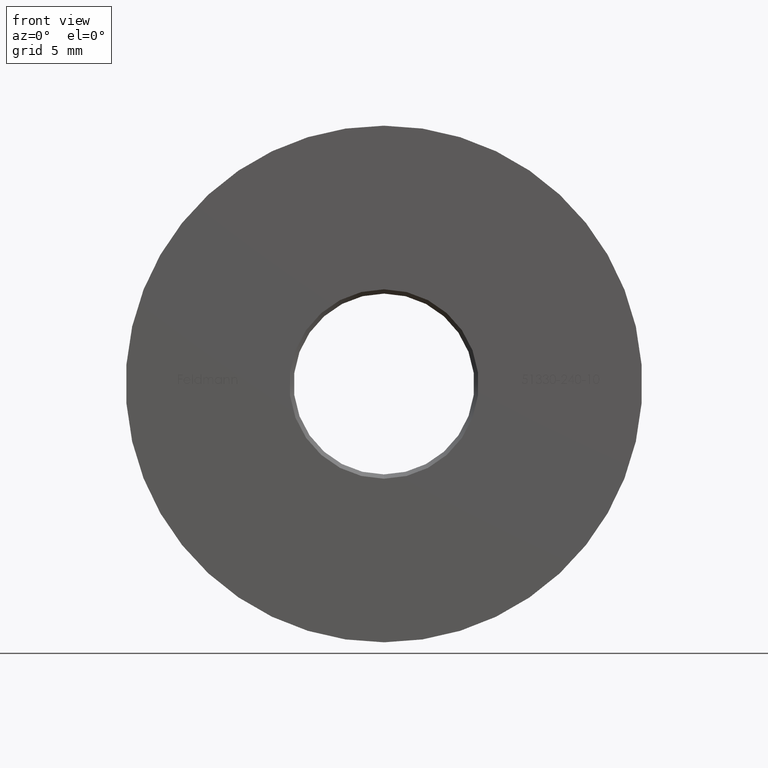
[diagram: clean part render]
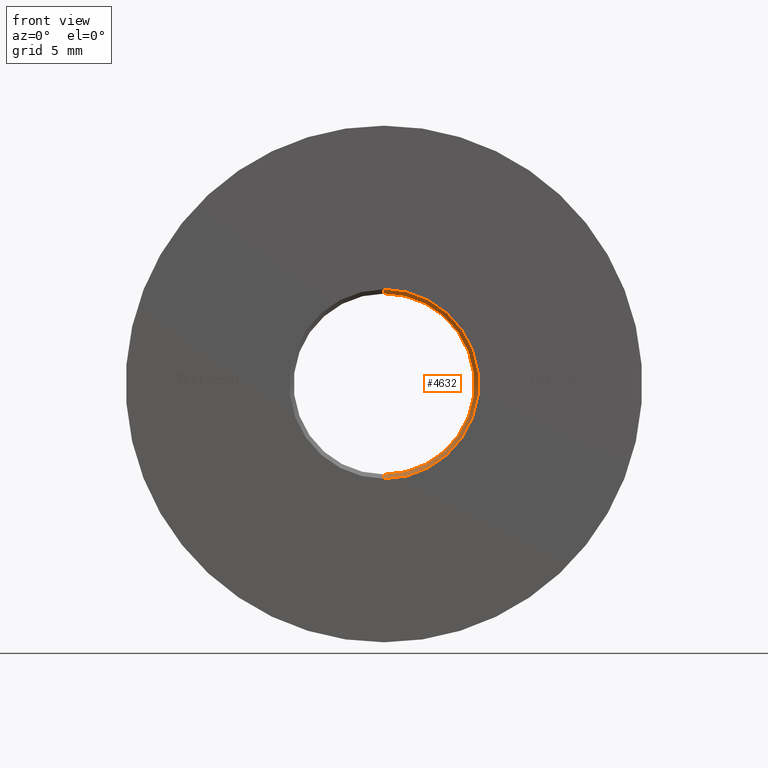
[diagram: same view with one face highlighted and labeled with its STEP entity id]
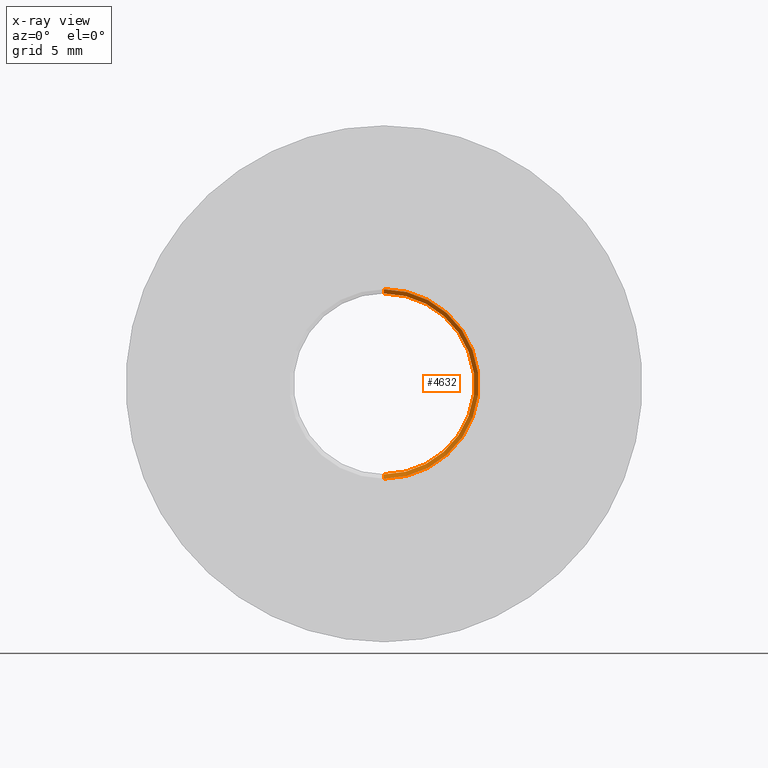
[diagram: x-ray of the same camera — body ghosted, the highlighted face saturated]
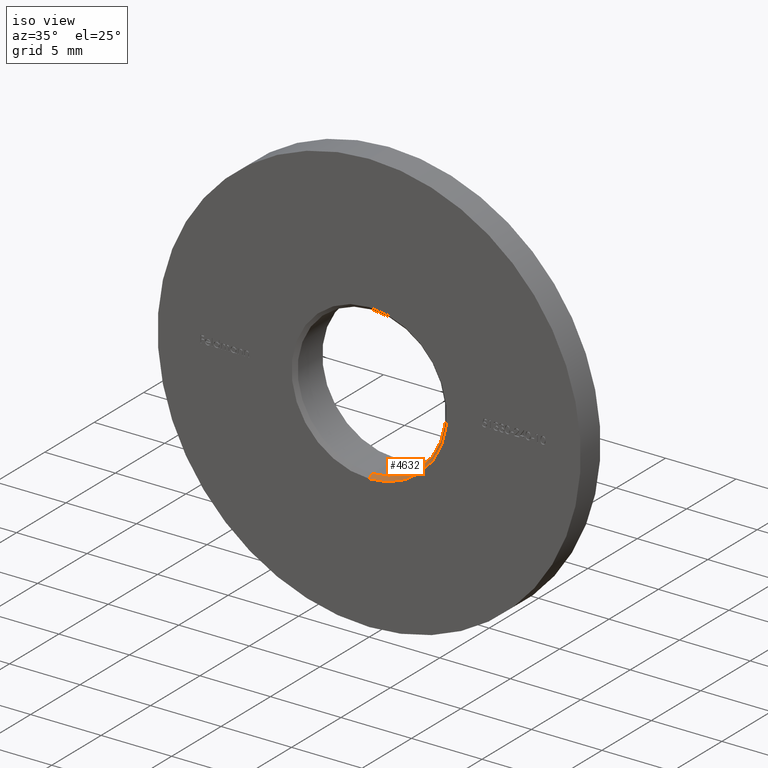
[diagram: same view with one face highlighted and labeled with its STEP entity id]
A machine part, front view. The second image highlights one B-rep face of the part: STEP entity #4632.
The next image is the same camera in x-ray: the body ghosted, the highlighted face saturated — about 0% of this face is hidden behind the body in this view.
A second angle (iso view) of the same face is appended — the face is thin or edge-on in the first view.
In plain terms, the highlighted conical surface has half-angle 45 deg.
Its self-contained STEP definition (entity closure, byte-faithful):
#177 = ORIENTED_EDGE ( 'NONE', *, *, #620, .F. ) ;
#445 = ORIENTED_EDGE ( 'NONE', *, *, #5795, .F. ) ;
#620 = EDGE_CURVE ( 'NONE', #1153, #12461, #2464, .T. ) ;
#1004 = CARTESIAN_POINT ( 'NONE',  ( 0.000000000000000000, 0.000000000000000000, 0.000000000000000000 ) ) ;
#1153 = VERTEX_POINT ( 'NONE', #13921 ) ;
#2180 = AXIS2_PLACEMENT_3D ( 'NONE', #11818, #9365, #7068 ) ;
#2185 = CARTESIAN_POINT ( 'NONE',  ( 6.429395695523604153E-16, 0.2500000000000028311, 5.250000000000000000 ) ) ;
#2464 = CIRCLE ( 'NONE', #6471, 5.499999999999998224 ) ;
#2913 = CONICAL_SURFACE ( 'NONE', #2180, 5.499999999999998224, 0.7853981633974378429 ) ;
#3085 = DIRECTION ( 'NONE',  ( 0.000000000000000000, 1.000000000000000000, 0.000000000000000000 ) ) ;
#3260 = CARTESIAN_POINT ( 'NONE',  ( 0.000000000000000000, 0.2500000000000028311, -5.250000000000000000 ) ) ;
#4352 = ORIENTED_EDGE ( 'NONE', *, *, #7720, .T. ) ;
#4632 = ADVANCED_FACE ( 'NONE', ( #9206 ), #2913, .F. ) ;
#4648 = CIRCLE ( 'NONE', #9402, 5.250000000000000000 ) ;
#5795 = EDGE_CURVE ( 'NONE', #13131, #1153, #12880, .T. ) ;
#6129 = VECTOR ( 'NONE', #9441, 1000.000000000000000 ) ;
#6471 = AXIS2_PLACEMENT_3D ( 'NONE', #1004, #3085, #6638 ) ;
#6638 = DIRECTION ( 'NONE',  ( 0.000000000000000000, 0.000000000000000000, 1.000000000000000000 ) ) ;
#6865 = VECTOR ( 'NONE', #13825, 1000.000000000000000 ) ;
#7068 = DIRECTION ( 'NONE',  ( 0.000000000000000000, 0.000000000000000000, -1.000000000000000000 ) ) ;
#7720 = EDGE_CURVE ( 'NONE', #14365, #12461, #9880, .T. ) ;
#7984 = ORIENTED_EDGE ( 'NONE', *, *, #14628, .F. ) ;
#9006 = EDGE_LOOP ( 'NONE', ( #445, #7984, #4352, #177 ) ) ;
#9206 = FACE_OUTER_BOUND ( 'NONE', #9006, .T. ) ;
#9273 = CARTESIAN_POINT ( 'NONE',  ( 0.000000000000000000, 0.000000000000000000, -5.499999999999998224 ) ) ;
#9365 = DIRECTION ( 'NONE',  ( -0.000000000000000000, -1.000000000000000000, -0.000000000000000000 ) ) ;
#9402 = AXIS2_PLACEMENT_3D ( 'NONE', #10863, #12011, #10775 ) ;
#9441 = DIRECTION ( 'NONE',  ( 8.659560562354842879E-17, -0.7071067811865549002, 0.7071067811865401342 ) ) ;
#9683 = CARTESIAN_POINT ( 'NONE',  ( 0.000000000000000000, 0.000000000000000000, -5.499999999999998224 ) ) ;
#9880 = LINE ( 'NONE', #9273, #6865 ) ;
#10625 = CARTESIAN_POINT ( 'NONE',  ( 6.735557395310440051E-16, 0.000000000000000000, 5.499999999999998224 ) ) ;
#10775 = DIRECTION ( 'NONE',  ( 0.000000000000000000, 0.000000000000000000, 1.000000000000000000 ) ) ;
#10863 = CARTESIAN_POINT ( 'NONE',  ( 0.000000000000000000, 0.2500000000000028311, 0.000000000000000000 ) ) ;
#11818 = CARTESIAN_POINT ( 'NONE',  ( 0.000000000000000000, 0.000000000000000000, 0.000000000000000000 ) ) ;
#12011 = DIRECTION ( 'NONE',  ( -0.000000000000000000, -1.000000000000000000, -0.000000000000000000 ) ) ;
#12461 = VERTEX_POINT ( 'NONE', #9683 ) ;
#12880 = LINE ( 'NONE', #10625, #6129 ) ;
#13131 = VERTEX_POINT ( 'NONE', #2185 ) ;
#13825 = DIRECTION ( 'NONE',  ( 0.000000000000000000, -0.7071067811865549002, -0.7071067811865401342 ) ) ;
#13921 = CARTESIAN_POINT ( 'NONE',  ( 6.735557395310440051E-16, 0.000000000000000000, 5.499999999999998224 ) ) ;
#14365 = VERTEX_POINT ( 'NONE', #3260 ) ;
#14628 = EDGE_CURVE ( 'NONE', #14365, #13131, #4648, .T. ) ;